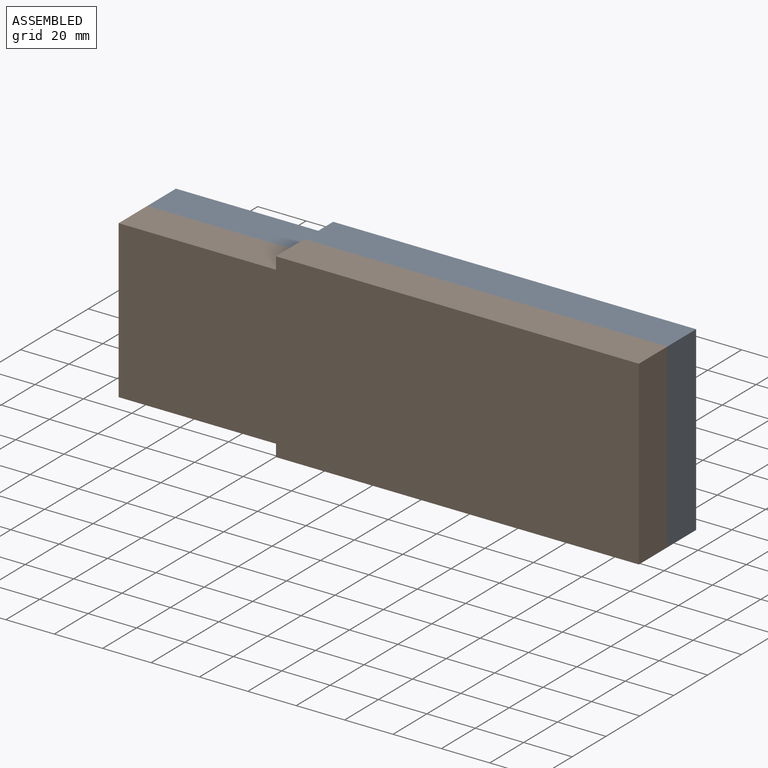
[diagram: assembled view]
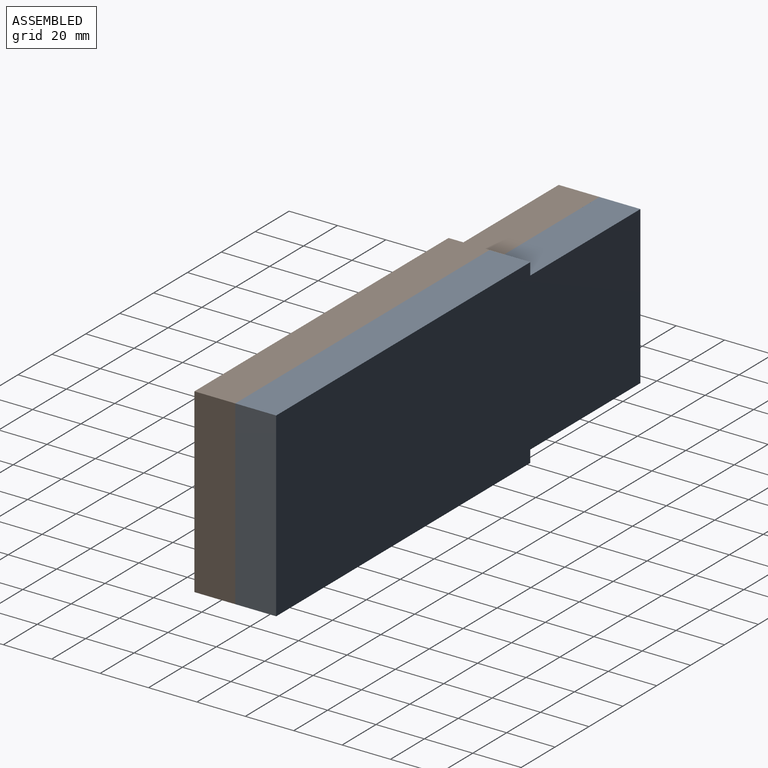
[diagram: assembled view, second angle]
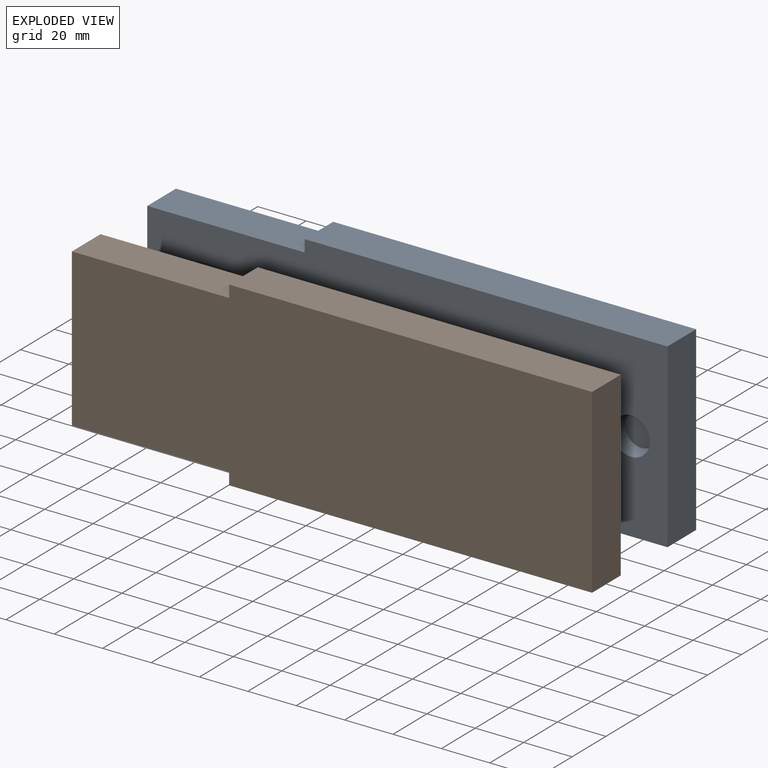
[diagram: exploded view]
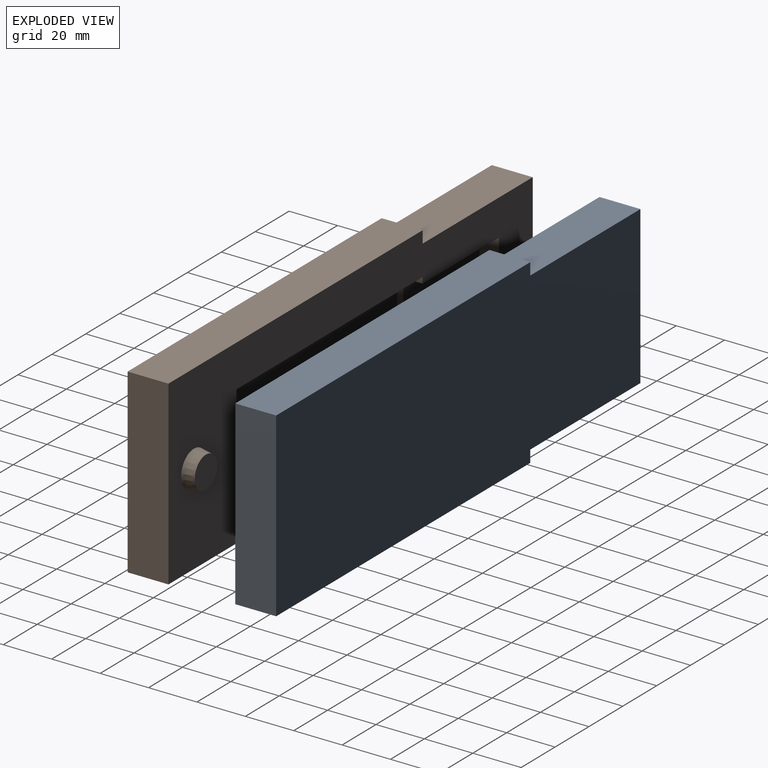
[diagram: exploded view, second angle]
ASSEMBLY  parts=2 mates=3
PART A: 27 faces, bbox 75x16.9x215 mm
  f0: plane 16.9x5mm, normal (0,0,-1), area 84.5mm2, adj f2,f7,f21,f26
  f1: plane 16.9x5mm, normal (0,0,-1), area 84.5mm2, adj f3,f6,f21,f26
  f2: plane 150x16.9mm, normal (1,0,0), area 2534.2mm2, adj f0,f4,f21,f26
  f3: plane 150x16.9mm, normal (-1,0,0), area 2534.2mm2, adj f1,f4,f21,f26
  f4: plane 75x16.9mm, normal (0,0,1), area 1267.1mm2, adj f2,f3,f21,f26
  f5: plane 65x16.9mm, normal (0,0,-1), area 1098.2mm2, adj f6,f7,f21,f26
  f6: plane 65x16.9mm, normal (-1,0,0), area 1098.2mm2, adj f1,f5,f21,f26
  f7: plane 65x16.9mm, normal (1,0,0), area 1098.2mm2, adj f0,f5,f21,f26
  f8: plane 45x6mm, normal (-1,0,0), area 270mm2, adj f10,f11,f16,f21
  f9: plane 45x6mm, normal (1,0,0), area 270mm2, adj f10,f11,f17,f21
  f10: plane 35x8mm, normal (0,0,1), area 278.3mm2, adj f8,f9,f15,f16,f17,f21
  f11: plane 40x10.5mm, normal (0,0,1), area 140mm2, adj f8,f9,f12,f13,f15,f16,f17,f18
  f12: plane 110x8.5mm, normal (-1,0,0), area 935mm2, adj f11,f14,f20,f21
  f13: plane 110x8.5mm, normal (1,0,0), area 935mm2, adj f11,f14,f19,f21
  f14: plane 40x10.5mm, normal (0,0,-1), area 418.3mm2, adj f12,f13,f18,f19,f20,f21
  f15: plane 45x31mm, normal (0,-1,0), area 1395mm2, adj f10,f11,f16,f17
  f16: cylinder r=2mm len=45mm, axis (0,0,-1), area 141.4mm2, adj f8,f10,f11,f15
  f17: cylinder r=2mm len=45mm, axis (0,0,1), area 141.4mm2, adj f9,f10,f11,f15
  f18: plane 110x36mm, normal (0,-1,0), area 3960mm2, adj f11,f14,f19,f20
  f19: cylinder r=2mm len=110mm, axis (0,0,1), area 345.6mm2, adj f11,f13,f14,f18
  f20: cylinder r=2mm len=110mm, axis (0,0,-1), area 345.6mm2, adj f11,f12,f14,f18
  f21: plane 215x75mm, normal (0,-1,0), area 9224.7mm2, adj f0,f1,f2,f3,f4,f5,f6,f7
  f22: cone r=5.25mm half-angle=10deg, axis (0,-1,0), area 180.7mm2, adj f21,f23
  f23: plane 8.38x8.38mm, normal (0,-1,0), area 55.2mm2, adj f22
  f24: cone r=7.75mm half-angle=10deg, axis (0,-1,0), area 276.4mm2, adj f21,f25
  f25: plane 13.38x13.38mm, normal (0,-1,0), area 140.7mm2, adj f24
  f26: plane 215x75mm, normal (0,1,0), area 15475mm2, adj f0,f1,f2,f3,f4,f5,f6,f7
PART B: 27 faces, bbox 75x21.9x215 mm
  f0: plane 16.9x5mm, normal (0,0,-1), area 84.5mm2, adj f2,f7,f21,f26
  f1: plane 16.9x5mm, normal (0,0,-1), area 84.5mm2, adj f3,f6,f21,f26
  f2: plane 150x16.9mm, normal (1,0,0), area 2534.2mm2, adj f0,f4,f21,f26
  f3: plane 150x16.9mm, normal (-1,0,0), area 2534.2mm2, adj f1,f4,f21,f26
  f4: plane 75x16.9mm, normal (0,0,1), area 1267.1mm2, adj f2,f3,f21,f26
  f5: plane 65x16.9mm, normal (0,0,-1), area 1098.2mm2, adj f6,f7,f21,f26
  f6: plane 65x16.9mm, normal (-1,0,0), area 1098.2mm2, adj f1,f5,f21,f26
  f7: plane 65x16.9mm, normal (1,0,0), area 1098.2mm2, adj f0,f5,f21,f26
  f8: plane 45x6mm, normal (-1,0,0), area 270mm2, adj f10,f11,f16,f21
  f9: plane 45x6mm, normal (1,0,0), area 270mm2, adj f10,f11,f17,f21
  f10: plane 35x8mm, normal (0,0,1), area 278.3mm2, adj f8,f9,f15,f16,f17,f21
  f11: plane 40x10.5mm, normal (0,0,1), area 140mm2, adj f8,f9,f12,f13,f15,f16,f17,f18
  f12: plane 110x8.5mm, normal (-1,0,0), area 935mm2, adj f11,f14,f20,f21
  f13: plane 110x8.5mm, normal (1,0,0), area 935mm2, adj f11,f14,f19,f21
  f14: plane 40x10.5mm, normal (0,0,-1), area 418.3mm2, adj f12,f13,f18,f19,f20,f21
  f15: plane 45x31mm, normal (0,-1,0), area 1395mm2, adj f10,f11,f16,f17
  f16: cylinder r=2mm len=45mm, axis (0,0,-1), area 141.4mm2, adj f8,f10,f11,f15
  f17: cylinder r=2mm len=45mm, axis (0,0,1), area 141.4mm2, adj f9,f10,f11,f15
  f18: plane 110x36mm, normal (0,-1,0), area 3960mm2, adj f11,f14,f19,f20
  f19: cylinder r=2mm len=110mm, axis (0,0,1), area 345.6mm2, adj f11,f13,f14,f18
  f20: cylinder r=2mm len=110mm, axis (0,0,-1), area 345.6mm2, adj f11,f12,f14,f18
  f21: plane 215x75mm, normal (0,-1,0), area 9244.7mm2, adj f0,f1,f2,f3,f4,f5,f6,f7
  f22: cone r=7.5mm half-angle=10deg, axis (0,1,0), area 225.2mm2, adj f21,f23
  f23: plane 13.24x13.24mm, normal (0,-1,0), area 137.6mm2, adj f22
  f24: cone r=5mm half-angle=10deg, axis (0,1,0), area 145.4mm2, adj f21,f25
  f25: plane 8.24x8.24mm, normal (0,-1,0), area 53.3mm2, adj f24
  f26: plane 215x75mm, normal (0,1,0), area 15475mm2, adj f0,f1,f2,f3,f4,f5,f6,f7
PLACE A rot(axis=(0,1,0),90deg) t=(-320.56,-50.04,128.75)mm
PLACE B rot(axis=(0.71,0,0.71),180deg) t=(-320.56,-50.04,128.75)mm
MATE planar B.f21 <-> A.f21  axis (0,1,0) through (-105.56,-50.04,166.25)mm
MATE planar A.f5 <-> B.f5  axis (-1,0,0) through (-320.56,-41.59,128.75)mm
MATE planar A.f6 <-> B.f7  axis (0,0,1) through (-288.06,-41.59,161.25)mm
